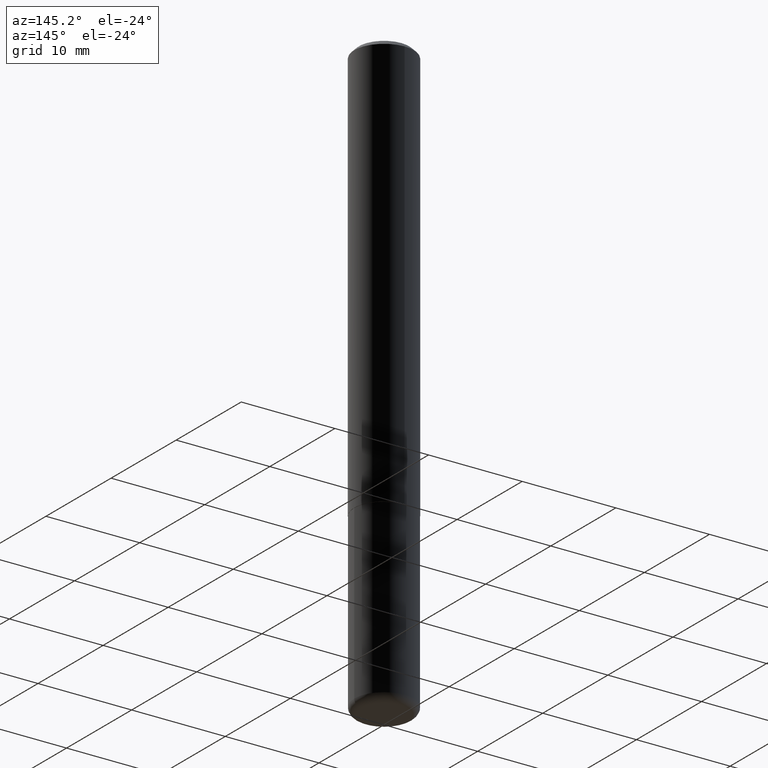
[diagram: clean part render]
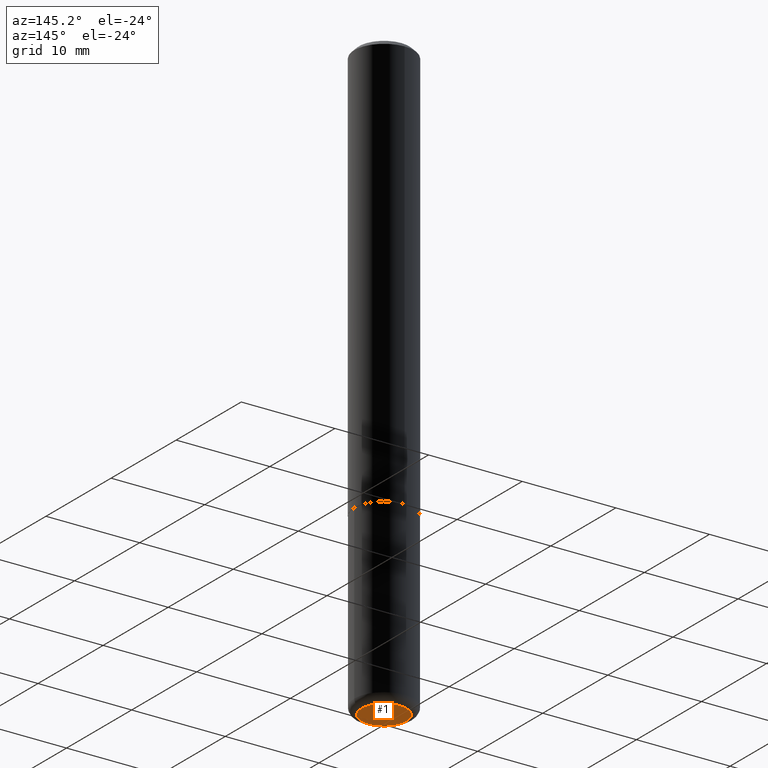
[diagram: same view with one face highlighted and labeled with its STEP entity id]
A machine part, auxiliary view. The second image highlights one B-rep face of the part: STEP entity #1.
In plain terms, the highlighted planar face has unit normal (0, -0, -1).
Its self-contained STEP definition (entity closure, byte-faithful):
#1 = ADVANCED_FACE ( 'NONE', ( #26 ), #150, .T. ) ;
#7 = DIRECTION ( 'NONE',  ( -2.445468806185136597E-29, 3.491481338843145583E-15, 1.000000000000000000 ) ) ;
#22 = CARTESIAN_POINT ( 'NONE',  ( -3.926534606047510986E-29, -2.310685068218294639E-14, -2.500000000000000000 ) ) ;
#26 = FACE_OUTER_BOUND ( 'NONE', #306, .T. ) ;
#69 = CARTESIAN_POINT ( 'NONE',  ( 6.113672015462842613E-29, -8.728703347107866520E-15, -2.500000000000000444 ) ) ;
#71 = DIRECTION ( 'NONE',  ( 1.000000000000000000, -6.982962677686273021E-15, 0.000000000000000000 ) ) ;
#115 = DIRECTION ( 'NONE',  ( -1.000000000000000000, 6.982962677686265922E-15, -4.876176775795935793E-29 ) ) ;
#118 = EDGE_CURVE ( 'NONE', #401, #137, #259, .T. ) ;
#137 = VERTEX_POINT ( 'NONE', #267 ) ;
#138 = AXIS2_PLACEMENT_3D ( 'NONE', #228, #7, #169 ) ;
#150 = PLANE ( 'NONE',  #399 ) ;
#159 = ORIENTED_EDGE ( 'NONE', *, *, #161, .F. ) ;
#161 = EDGE_CURVE ( 'NONE', #137, #401, #214, .T. ) ;
#169 = DIRECTION ( 'NONE',  ( 1.000000000000000000, -6.982962677686273021E-15, 0.000000000000000000 ) ) ;
#214 = CIRCLE ( 'NONE', #138, 0.09499999999999998723 ) ;
#228 = CARTESIAN_POINT ( 'NONE',  ( 6.113672015462842613E-29, -8.728703347107866520E-15, -2.500000000000000444 ) ) ;
#230 = DIRECTION ( 'NONE',  ( -2.445468806185136597E-29, 3.491481338843145583E-15, 1.000000000000000000 ) ) ;
#259 = CIRCLE ( 'NONE', #308, 0.09499999999999998723 ) ;
#267 = CARTESIAN_POINT ( 'NONE',  ( 0.09499999999999998723, -9.392084801488061542E-15, -2.500000000000000444 ) ) ;
#268 = ORIENTED_EDGE ( 'NONE', *, *, #118, .F. ) ;
#284 = CARTESIAN_POINT ( 'NONE',  ( -0.09499999999999998723, -7.894734117689107359E-15, -2.500000000000000444 ) ) ;
#306 = EDGE_LOOP ( 'NONE', ( #159, #268 ) ) ;
#308 = AXIS2_PLACEMENT_3D ( 'NONE', #69, #230, #71 ) ;
#399 = AXIS2_PLACEMENT_3D ( 'NONE', #22, #407, #115 ) ;
#401 = VERTEX_POINT ( 'NONE', #284 ) ;
#407 = DIRECTION ( 'NONE',  ( 2.438088387897960049E-29, -3.491481338843145188E-15, -1.000000000000000000 ) ) ;